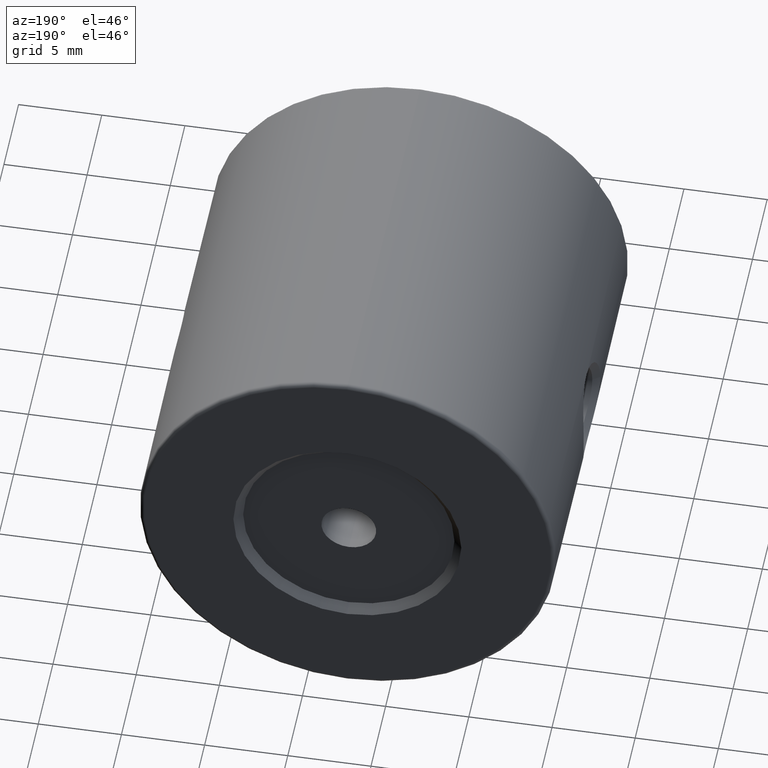
[diagram: clean part render]
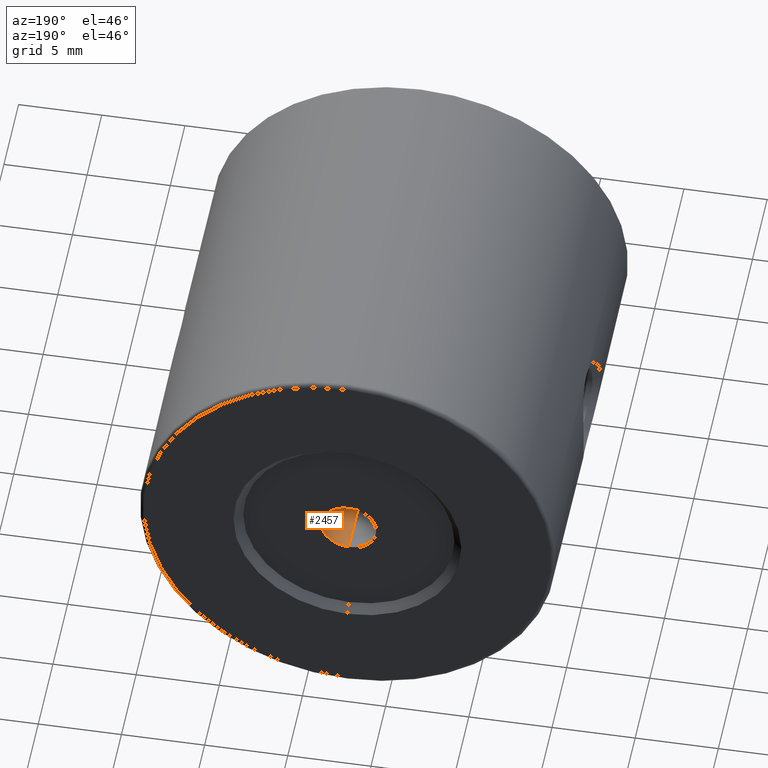
[diagram: same view with one face highlighted and labeled with its STEP entity id]
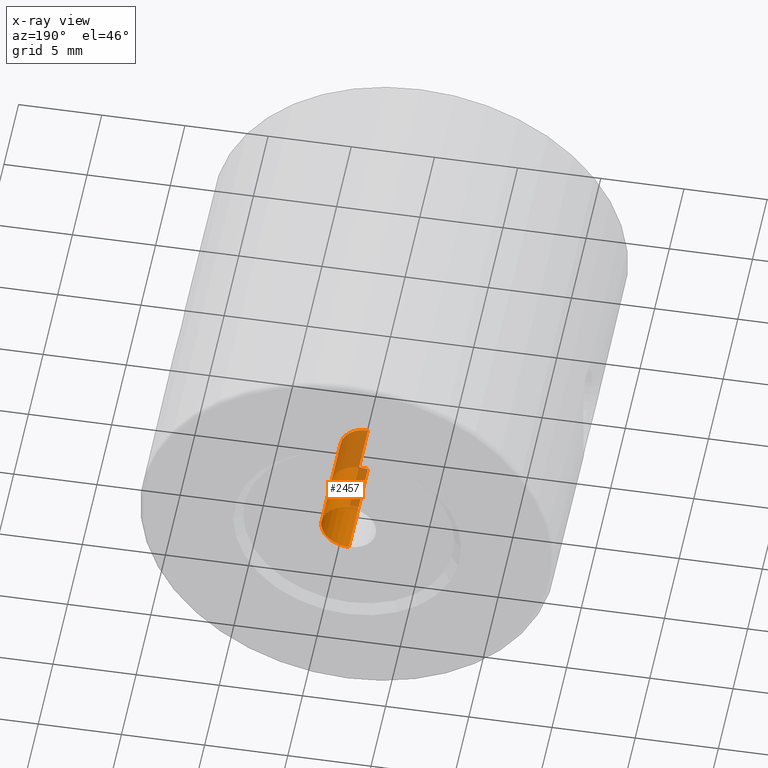
[diagram: x-ray of the same camera — body ghosted, the highlighted face saturated]
A machine part, auxiliary view. The second image highlights one B-rep face of the part: STEP entity #2457.
The next image is the same camera in x-ray: the body ghosted, the highlighted face saturated — about 38% of this face is hidden behind the body in this view.
In plain terms, the highlighted cylindrical surface (edge-blend (fillet) strip) has radius 1.65 mm, axis along (-0, 1, -0).
Its self-contained STEP definition (entity closure, byte-faithful):
#184 = EDGE_LOOP ( 'NONE', ( #1388, #715, #2663, #1290 ) ) ;
#247 = EDGE_CURVE ( 'NONE', #681, #450, #440, .T. ) ;
#286 = CARTESIAN_POINT ( 'NONE',  ( -22.50520183104453409, 6.898252184769389395, 50.00000000000000000 ) ) ;
#303 = DIRECTION ( 'NONE',  ( 0.0000000000000000000, 0.0000000000000000000, 1.000000000000000000 ) ) ;
#356 = CYLINDRICAL_SURFACE ( 'NONE', #2764, 1.649999999999998579 ) ;
#398 = DIRECTION ( 'NONE',  ( -0.0000000000000000000, 1.000000000000000000, -0.0000000000000000000 ) ) ;
#440 = CIRCLE ( 'NONE', #1692, 1.649999999999998579 ) ;
#443 = CARTESIAN_POINT ( 'NONE',  ( -22.50520183104453409, 13.39825218476938851, 48.35000000000000142 ) ) ;
#450 = VERTEX_POINT ( 'NONE', #443 ) ;
#590 = DIRECTION ( 'NONE',  ( -0.0000000000000000000, 1.000000000000000000, -0.0000000000000000000 ) ) ;
#681 = VERTEX_POINT ( 'NONE', #852 ) ;
#715 = ORIENTED_EDGE ( 'NONE', *, *, #1819, .F. ) ;
#852 = CARTESIAN_POINT ( 'NONE',  ( -22.50520183104453409, 13.39825218476938851, 51.64999999999999858 ) ) ;
#1158 = CARTESIAN_POINT ( 'NONE',  ( -22.50520183104453409, 13.39825218476938851, 50.00000000000000000 ) ) ;
#1290 = ORIENTED_EDGE ( 'NONE', *, *, #247, .T. ) ;
#1388 = ORIENTED_EDGE ( 'NONE', *, *, #2801, .F. ) ;
#1497 = FACE_OUTER_BOUND ( 'NONE', #184, .T. ) ;
#1574 = VECTOR ( 'NONE', #3179, 1000.000000000000000 ) ;
#1692 = AXIS2_PLACEMENT_3D ( 'NONE', #1158, #1708, #2792 ) ;
#1708 = DIRECTION ( 'NONE',  ( 0.0000000000000000000, 1.000000000000000000, 0.0000000000000000000 ) ) ;
#1723 = CARTESIAN_POINT ( 'NONE',  ( -22.50520183104453409, 6.898252184769389395, 48.35000000000000142 ) ) ;
#1781 = CARTESIAN_POINT ( 'NONE',  ( -22.50520183104453409, 13.89825218476938851, 48.35000000000000142 ) ) ;
#1819 = EDGE_CURVE ( 'NONE', #3152, #2405, #2307, .T. ) ;
#2020 = DIRECTION ( 'NONE',  ( 0.0000000000000000000, 0.0000000000000000000, 1.000000000000000000 ) ) ;
#2093 = CARTESIAN_POINT ( 'NONE',  ( -22.50520183104453409, 13.89825218476938851, 51.64999999999999858 ) ) ;
#2307 = CIRCLE ( 'NONE', #3111, 1.649999999999998579 ) ;
#2308 = DIRECTION ( 'NONE',  ( -0.0000000000000000000, 1.000000000000000000, -0.0000000000000000000 ) ) ;
#2329 = LINE ( 'NONE', #2093, #1574 ) ;
#2405 = VERTEX_POINT ( 'NONE', #1723 ) ;
#2457 = ADVANCED_FACE ( 'NONE', ( #1497 ), #356, .F. ) ;
#2543 = EDGE_CURVE ( 'NONE', #3152, #681, #2329, .T. ) ;
#2662 = VECTOR ( 'NONE', #398, 1000.000000000000000 ) ;
#2663 = ORIENTED_EDGE ( 'NONE', *, *, #2543, .T. ) ;
#2764 = AXIS2_PLACEMENT_3D ( 'NONE', #3327, #2308, #2020 ) ;
#2792 = DIRECTION ( 'NONE',  ( 0.0000000000000000000, 0.0000000000000000000, 1.000000000000000000 ) ) ;
#2801 = EDGE_CURVE ( 'NONE', #2405, #450, #2835, .T. ) ;
#2835 = LINE ( 'NONE', #1781, #2662 ) ;
#3111 = AXIS2_PLACEMENT_3D ( 'NONE', #286, #590, #303 ) ;
#3152 = VERTEX_POINT ( 'NONE', #3499 ) ;
#3179 = DIRECTION ( 'NONE',  ( -0.0000000000000000000, 1.000000000000000000, -0.0000000000000000000 ) ) ;
#3327 = CARTESIAN_POINT ( 'NONE',  ( -22.50520183104453409, 13.89825218476938851, 50.00000000000000000 ) ) ;
#3499 = CARTESIAN_POINT ( 'NONE',  ( -22.50520183104453409, 6.898252184769389395, 51.64999999999999858 ) ) ;